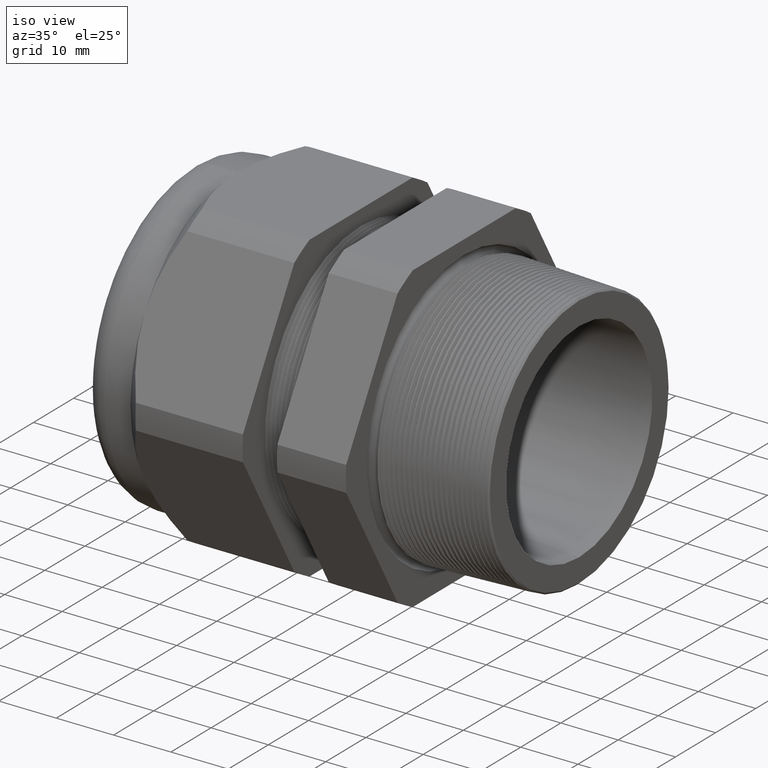
[diagram: clean part render]
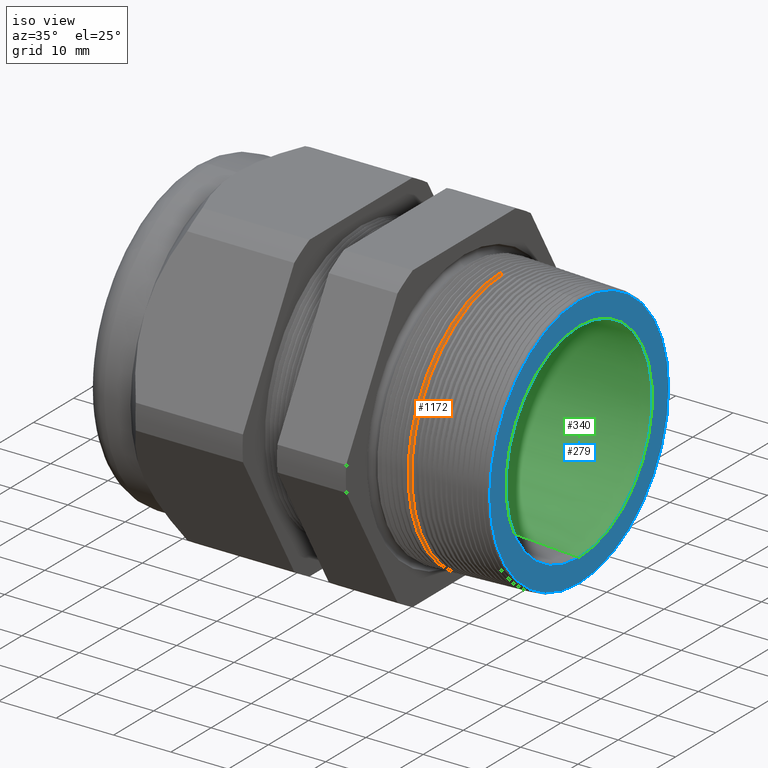
[diagram: same view with three faces highlighted in distinct colors, each labeled with its STEP entity id]
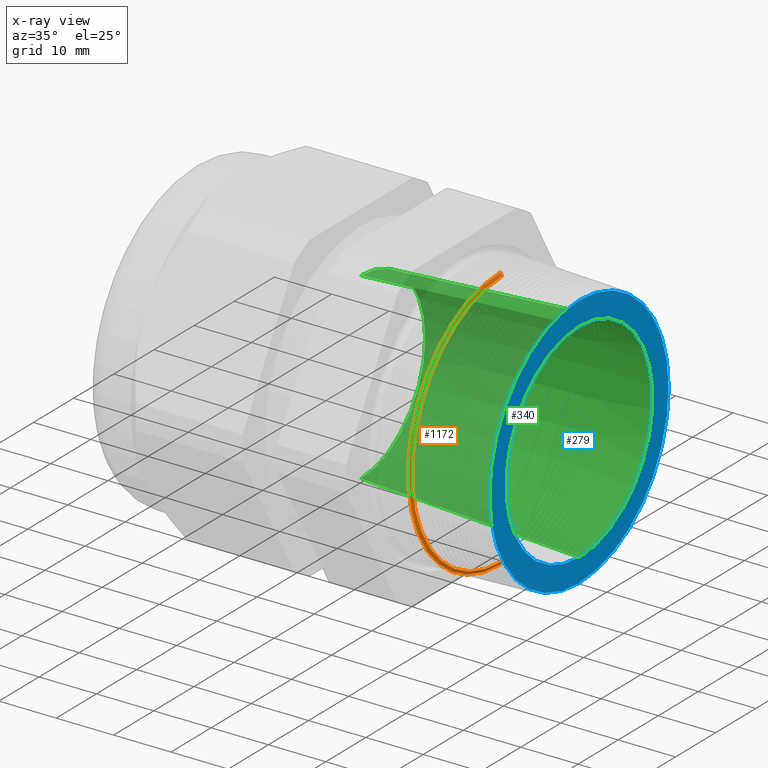
[diagram: x-ray of the same camera — body ghosted, the three highlighted faces saturated]
A machine part, iso view with three faces highlighted in distinct colors.
The next image is the same camera in x-ray (body ghosted, the three faces saturated) — at least one of them is partly hidden behind the body in this view.
Their STEP definitions:

[orange] entity #1172 — the highlighted conical surface has half-angle 62 deg.
#917 = EDGE_CURVE ( 'NONE', #1199, #1247, #2943, .T. ) ;
#918 = EDGE_CURVE ( 'NONE', #1240, #1239, #2939, .T. ) ;
#1168 = EDGE_LOOP ( 'NONE', ( #6024, #6057, #6025, #6027 ) ) ;
#1172 = ADVANCED_FACE ( 'NONE', ( #3449 ), #3448, .T. ) ;
#1199 = VERTEX_POINT ( 'NONE', #3456 ) ;
#1239 = VERTEX_POINT ( 'NONE', #3579 ) ;
#1240 = VERTEX_POINT ( 'NONE', #3578 ) ;
#1247 = VERTEX_POINT ( 'NONE', #3571 ) ;
#1372 = EDGE_CURVE ( 'NONE', #1239, #1247, #3826, .T. ) ;
#2937 = VECTOR ( 'NONE', #2999, 39.37007874015748100 ) ;
#2938 = CARTESIAN_POINT ( 'NONE',  ( -0.06499999999999996100, 0.0000000000000000000, 0.9152480608060996600 ) ) ;
#2939 = LINE ( 'NONE', #2938, #2937 ) ;
#2940 = DIRECTION ( 'NONE',  ( -0.4694715627858998500, 1.081298943409539200E-016, -0.8829475928589221000 ) ) ;
#2941 = VECTOR ( 'NONE', #2940, 39.37007874015748100 ) ;
#2942 = CARTESIAN_POINT ( 'NONE',  ( -0.06499999999999996100, 1.120855608092012100E-016, -0.9152480608060996600 ) ) ;
#2943 = LINE ( 'NONE', #2942, #2941 ) ;
#2999 = DIRECTION ( 'NONE',  ( -0.4694715627858998500, 0.0000000000000000000, 0.8829475928589221000 ) ) ;
#3388 = CARTESIAN_POINT ( 'NONE',  ( -0.06499999999999996100, 0.0000000000000000000, 0.0000000000000000000 ) ) ;
#3444 = DIRECTION ( 'NONE',  ( 0.0000000000000000000, 0.0000000000000000000, 1.000000000000000000 ) ) ;
#3445 = DIRECTION ( 'NONE',  ( -1.000000000000000000, 0.0000000000000000000, 0.0000000000000000000 ) ) ;
#3446 = AXIS2_PLACEMENT_3D ( 'NONE', #3388, #3445, #3444 ) ;
#3448 = CONICAL_SURFACE ( 'NONE', #3446, 0.9152480608060996600, 1.082104136236474100 ) ;
#3449 = FACE_OUTER_BOUND ( 'NONE', #1168, .T. ) ;
#3456 = CARTESIAN_POINT ( 'NONE',  ( -0.04873702801092110600, 1.096789061427755900E-016, -0.8846618589810537600 ) ) ;
#3571 = CARTESIAN_POINT ( 'NONE',  ( -0.06036484877867100100, 1.110382940727331700E-016, -0.9065306092332641200 ) ) ;
#3578 = CARTESIAN_POINT ( 'NONE',  ( -0.04873702801092110600, 0.0000000000000000000, 0.8846618589810537600 ) ) ;
#3579 = CARTESIAN_POINT ( 'NONE',  ( -0.06036484877867100100, 0.0000000000000000000, 0.9065306092332641200 ) ) ;
#3822 = DIRECTION ( 'NONE',  ( 0.0000000000000000000, 0.0000000000000000000, 1.000000000000000000 ) ) ;
#3823 = DIRECTION ( 'NONE',  ( 1.000000000000000000, 0.0000000000000000000, 0.0000000000000000000 ) ) ;
#3824 = CARTESIAN_POINT ( 'NONE',  ( -0.06036484877867100100, 0.0000000000000000000, 0.0000000000000000000 ) ) ;
#3825 = AXIS2_PLACEMENT_3D ( 'NONE', #3824, #3823, #3822 ) ;
#3826 = CIRCLE ( 'NONE', #3825, 0.9065306092332641200 ) ;
#5252 = DIRECTION ( 'NONE',  ( 0.0000000000000000000, 0.0000000000000000000, -1.000000000000000000 ) ) ;
#5253 = DIRECTION ( 'NONE',  ( 1.000000000000000000, 0.0000000000000000000, 0.0000000000000000000 ) ) ;
#5254 = CARTESIAN_POINT ( 'NONE',  ( -0.04873702801092110600, 0.0000000000000000000, 0.0000000000000000000 ) ) ;
#5255 = AXIS2_PLACEMENT_3D ( 'NONE', #5254, #5253, #5252 ) ;
#5256 = CIRCLE ( 'NONE', #5255, 0.8846618589810537600 ) ;
#6024 = ORIENTED_EDGE ( 'NONE', *, *, #917, .F. ) ;
#6025 = ORIENTED_EDGE ( 'NONE', *, *, #918, .T. ) ;
#6027 = ORIENTED_EDGE ( 'NONE', *, *, #1372, .T. ) ;
#6057 = ORIENTED_EDGE ( 'NONE', *, *, #6058, .F. ) ;
#6058 = EDGE_CURVE ( 'NONE', #1240, #1199, #5256, .T. ) ;

[blue] entity #279 — the highlighted planar face has unit normal (1, 0, 0).
#279 = ADVANCED_FACE ( 'NONE', ( #2279, #2278 ), #2277, .T. ) ;
#337 = ORIENTED_EDGE ( 'NONE', *, *, #342, .F. ) ;
#342 = EDGE_CURVE ( 'NONE', #1817, #1809, #2386, .T. ) ;
#346 = ORIENTED_EDGE ( 'NONE', *, *, #1815, .F. ) ;
#765 = ORIENTED_EDGE ( 'NONE', *, *, #828, .T. ) ;
#783 = EDGE_LOOP ( 'NONE', ( #765, #826 ) ) ;
#823 = EDGE_LOOP ( 'NONE', ( #337, #346 ) ) ;
#826 = ORIENTED_EDGE ( 'NONE', *, *, #1906, .T. ) ;
#828 = EDGE_CURVE ( 'NONE', #1910, #1905, #2834, .T. ) ;
#1809 = VERTEX_POINT ( 'NONE', #4510 ) ;
#1815 = EDGE_CURVE ( 'NONE', #1809, #1817, #4569, .T. ) ;
#1817 = VERTEX_POINT ( 'NONE', #4560 ) ;
#1905 = VERTEX_POINT ( 'NONE', #4696 ) ;
#1906 = EDGE_CURVE ( 'NONE', #1905, #1910, #4695, .T. ) ;
#1910 = VERTEX_POINT ( 'NONE', #4751 ) ;
#2273 = DIRECTION ( 'NONE',  ( 0.0000000000000000000, 0.0000000000000000000, -1.000000000000000000 ) ) ;
#2274 = DIRECTION ( 'NONE',  ( 1.000000000000000000, 0.0000000000000000000, 0.0000000000000000000 ) ) ;
#2275 = CARTESIAN_POINT ( 'NONE',  ( 0.4800000000000000900, 0.7176606529076249300, 0.0000000000000000000 ) ) ;
#2276 = AXIS2_PLACEMENT_3D ( 'NONE', #2275, #2274, #2273 ) ;
#2277 = PLANE ( 'NONE',  #2276 ) ;
#2278 = FACE_BOUND ( 'NONE', #823, .T. ) ;
#2279 = FACE_OUTER_BOUND ( 'NONE', #783, .T. ) ;
#2379 = DIRECTION ( 'NONE',  ( 0.0000000000000000000, 0.0000000000000000000, -1.000000000000000000 ) ) ;
#2380 = DIRECTION ( 'NONE',  ( 1.000000000000000000, 0.0000000000000000000, 0.0000000000000000000 ) ) ;
#2381 = CARTESIAN_POINT ( 'NONE',  ( 0.4800000000000000900, 0.0000000000000000000, 0.0000000000000000000 ) ) ;
#2382 = AXIS2_PLACEMENT_3D ( 'NONE', #2381, #2380, #2379 ) ;
#2386 = CIRCLE ( 'NONE', #2382, 0.7176606529076249300 ) ;
#2779 = CARTESIAN_POINT ( 'NONE',  ( 0.4800000000000000900, 0.0000000000000000000, 0.0000000000000000000 ) ) ;
#2831 = DIRECTION ( 'NONE',  ( 0.0000000000000000000, 0.0000000000000000000, -1.000000000000000000 ) ) ;
#2832 = DIRECTION ( 'NONE',  ( 1.000000000000000000, 0.0000000000000000000, 0.0000000000000000000 ) ) ;
#2833 = AXIS2_PLACEMENT_3D ( 'NONE', #2779, #2832, #2831 ) ;
#2834 = CIRCLE ( 'NONE', #2833, 0.8772924933548400500 ) ;
#4510 = CARTESIAN_POINT ( 'NONE',  ( 0.4800000000000000900, 8.788808214573225300E-017, 0.7176606529076249300 ) ) ;
#4560 = CARTESIAN_POINT ( 'NONE',  ( 0.4800000000000000900, 0.0000000000000000000, -0.7176606529076249300 ) ) ;
#4565 = DIRECTION ( 'NONE',  ( 0.0000000000000000000, 0.0000000000000000000, -1.000000000000000000 ) ) ;
#4566 = DIRECTION ( 'NONE',  ( 1.000000000000000000, 0.0000000000000000000, 0.0000000000000000000 ) ) ;
#4567 = CARTESIAN_POINT ( 'NONE',  ( 0.4800000000000000900, 0.0000000000000000000, 0.0000000000000000000 ) ) ;
#4568 = AXIS2_PLACEMENT_3D ( 'NONE', #4567, #4566, #4565 ) ;
#4569 = CIRCLE ( 'NONE', #4568, 0.7176606529076249300 ) ;
#4692 = DIRECTION ( 'NONE',  ( 1.000000000000000000, 0.0000000000000000000, 0.0000000000000000000 ) ) ;
#4693 = CARTESIAN_POINT ( 'NONE',  ( 0.4800000000000000900, 0.0000000000000000000, 0.0000000000000000000 ) ) ;
#4694 = AXIS2_PLACEMENT_3D ( 'NONE', #4693, #4692, #4754 ) ;
#4695 = CIRCLE ( 'NONE', #4694, 0.8772924933548400500 ) ;
#4696 = CARTESIAN_POINT ( 'NONE',  ( 0.4800000000000000900, 1.080935808392331800E-016, -0.8772924933548400500 ) ) ;
#4751 = CARTESIAN_POINT ( 'NONE',  ( 0.4800000000000000900, 0.0000000000000000000, 0.8772924933548400500 ) ) ;
#4754 = DIRECTION ( 'NONE',  ( 0.0000000000000000000, 0.0000000000000000000, -1.000000000000000000 ) ) ;

[green] entity #340 — the highlighted conical surface has half-angle 3.347 deg.
#318 = ORIENTED_EDGE ( 'NONE', *, *, #342, .T. ) ;
#323 = ORIENTED_EDGE ( 'NONE', *, *, #1814, .T. ) ;
#332 = ORIENTED_EDGE ( 'NONE', *, *, #1816, .F. ) ;
#333 = EDGE_CURVE ( 'NONE', #6205, #1937, #2337, .T. ) ;
#336 = ORIENTED_EDGE ( 'NONE', *, *, #333, .F. ) ;
#340 = ADVANCED_FACE ( 'NONE', ( #2327 ), #2325, .F. ) ;
#342 = EDGE_CURVE ( 'NONE', #1817, #1809, #2386, .T. ) ;
#345 = EDGE_LOOP ( 'NONE', ( #332, #336, #323, #318 ) ) ;
#1809 = VERTEX_POINT ( 'NONE', #4510 ) ;
#1814 = EDGE_CURVE ( 'NONE', #6205, #1817, #4509, .T. ) ;
#1816 = EDGE_CURVE ( 'NONE', #1937, #1809, #4564, .T. ) ;
#1817 = VERTEX_POINT ( 'NONE', #4560 ) ;
#1937 = VERTEX_POINT ( 'NONE', #4814 ) ;
#2325 = CONICAL_SURFACE ( 'NONE', #2387, 0.6300000000000000000, 0.05842056254032859700 ) ;
#2327 = FACE_OUTER_BOUND ( 'NONE', #345, .T. ) ;
#2333 = DIRECTION ( 'NONE',  ( 0.0000000000000000000, 0.0000000000000000000, -1.000000000000000000 ) ) ;
#2334 = DIRECTION ( 'NONE',  ( 1.000000000000000000, 0.0000000000000000000, 0.0000000000000000000 ) ) ;
#2335 = CARTESIAN_POINT ( 'NONE',  ( -1.018802799999999800, 0.0000000000000000000, 0.0000000000000000000 ) ) ;
#2336 = AXIS2_PLACEMENT_3D ( 'NONE', #2335, #2334, #2333 ) ;
#2337 = CIRCLE ( 'NONE', #2336, 0.6300000000000000000 ) ;
#2379 = DIRECTION ( 'NONE',  ( 0.0000000000000000000, 0.0000000000000000000, -1.000000000000000000 ) ) ;
#2380 = DIRECTION ( 'NONE',  ( 1.000000000000000000, 0.0000000000000000000, 0.0000000000000000000 ) ) ;
#2381 = CARTESIAN_POINT ( 'NONE',  ( 0.4800000000000000900, 0.0000000000000000000, 0.0000000000000000000 ) ) ;
#2382 = AXIS2_PLACEMENT_3D ( 'NONE', #2381, #2380, #2379 ) ;
#2383 = DIRECTION ( 'NONE',  ( 0.0000000000000000000, 0.0000000000000000000, -1.000000000000000000 ) ) ;
#2384 = DIRECTION ( 'NONE',  ( 1.000000000000000000, 0.0000000000000000000, 0.0000000000000000000 ) ) ;
#2385 = CARTESIAN_POINT ( 'NONE',  ( -1.018802799999999800, 0.0000000000000000000, 0.0000000000000000000 ) ) ;
#2386 = CIRCLE ( 'NONE', #2382, 0.7176606529076249300 ) ;
#2387 = AXIS2_PLACEMENT_3D ( 'NONE', #2385, #2384, #2383 ) ;
#4506 = DIRECTION ( 'NONE',  ( 0.9982940042272937500, 0.0000000000000000000, -0.05838733701613838000 ) ) ;
#4507 = VECTOR ( 'NONE', #4506, 39.37007874015748900 ) ;
#4508 = CARTESIAN_POINT ( 'NONE',  ( -1.018802799999999800, 0.0000000000000000000, -0.6300000000000000000 ) ) ;
#4509 = LINE ( 'NONE', #4508, #4507 ) ;
#4510 = CARTESIAN_POINT ( 'NONE',  ( 0.4800000000000000900, 8.788808214573225300E-017, 0.7176606529076249300 ) ) ;
#4560 = CARTESIAN_POINT ( 'NONE',  ( 0.4800000000000000900, 0.0000000000000000000, -0.7176606529076249300 ) ) ;
#4561 = DIRECTION ( 'NONE',  ( 0.9982940042272937500, 7.150386538755162900E-018, 0.05838733701613838000 ) ) ;
#4562 = VECTOR ( 'NONE', #4561, 39.37007874015748900 ) ;
#4563 = CARTESIAN_POINT ( 'NONE',  ( -1.018802799999999800, 7.715274834628325400E-017, 0.6300000000000000000 ) ) ;
#4564 = LINE ( 'NONE', #4563, #4562 ) ;
#4814 = CARTESIAN_POINT ( 'NONE',  ( -1.018802799999999800, 8.252041524600774700E-017, 0.6300000000000000000 ) ) ;
#5454 = CARTESIAN_POINT ( 'NONE',  ( -1.018802799999999800, 0.0000000000000000000, -0.6300000000000000000 ) ) ;
#6205 = VERTEX_POINT ( 'NONE', #5454 ) ;